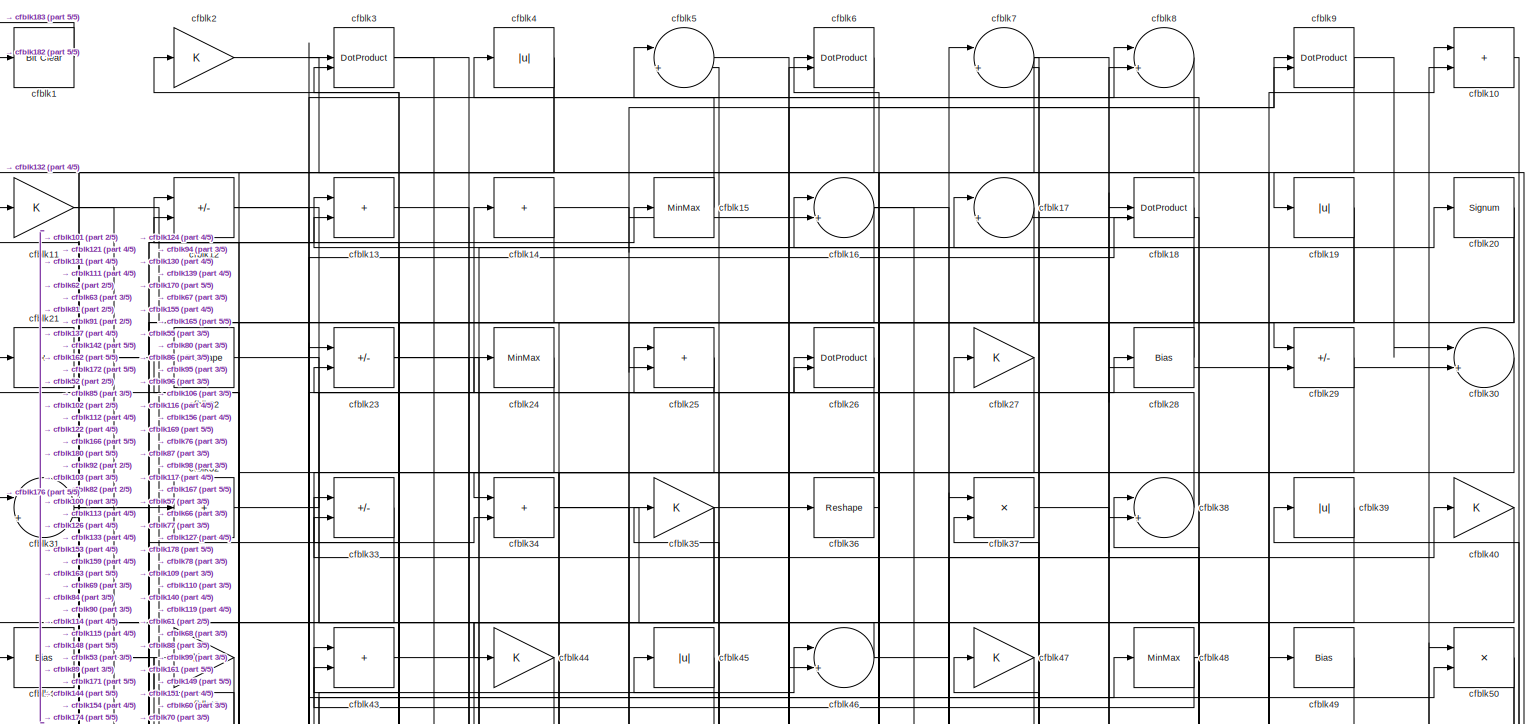
[diagram: root canvas - part 1/5, full width, top band]
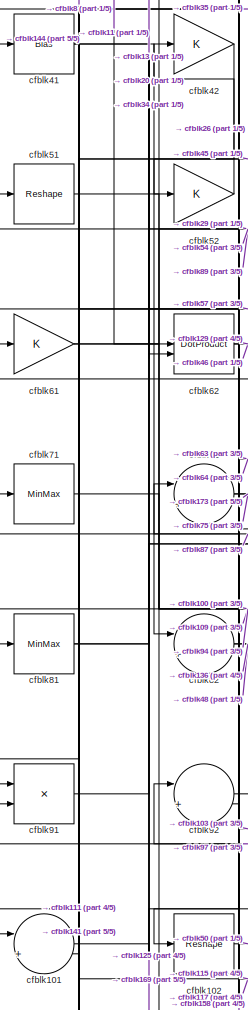
[diagram: root canvas - part 2/5, middle left region]
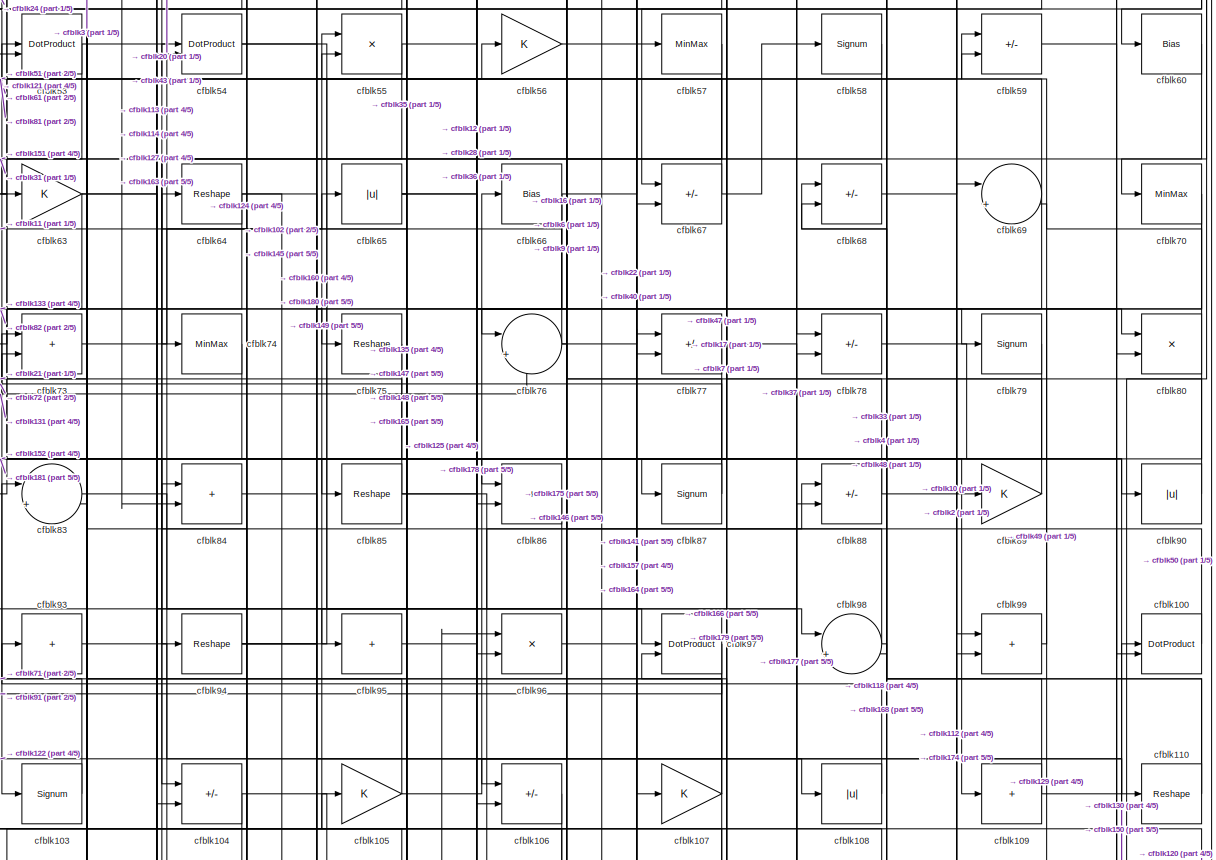
[diagram: root canvas - part 3/5, full width, middle band]
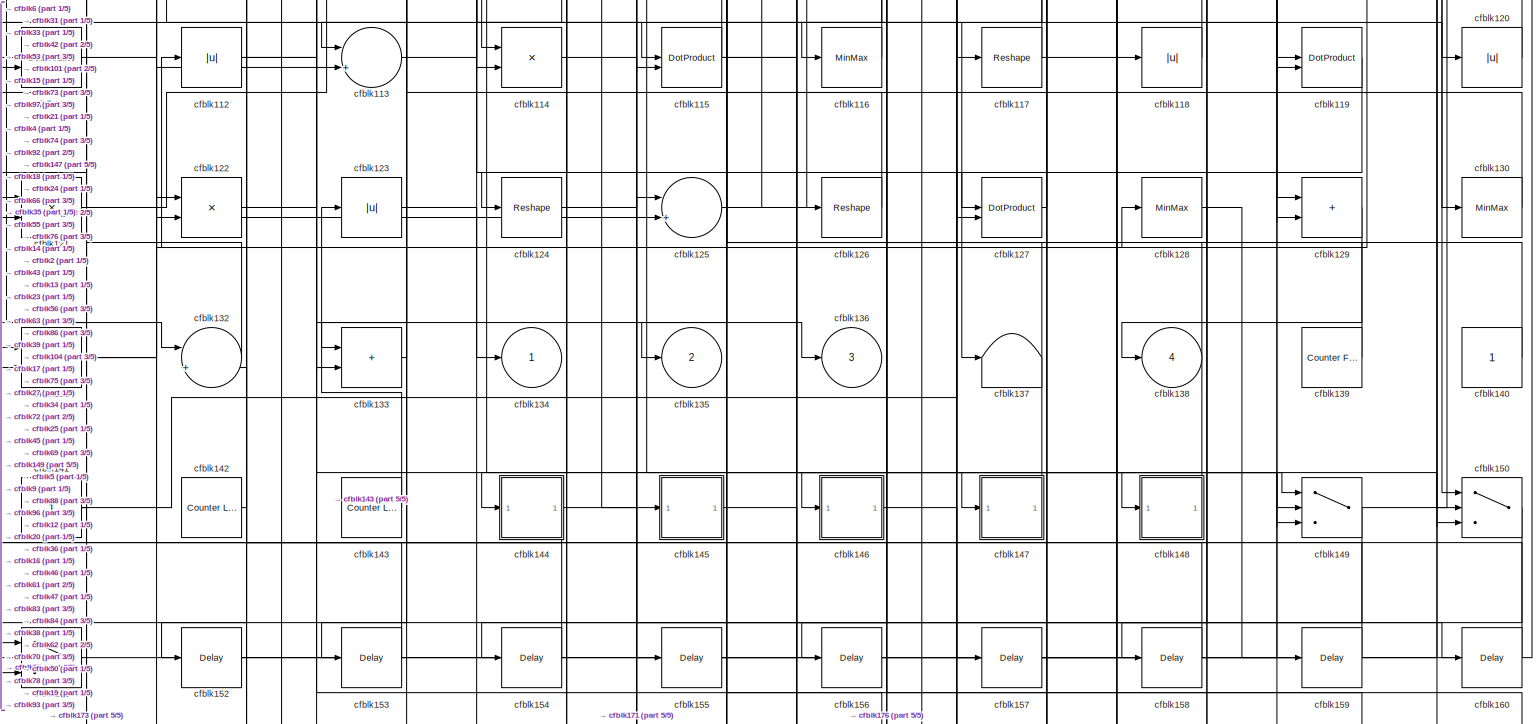
[diagram: root canvas - part 4/5, full width, bottom band]
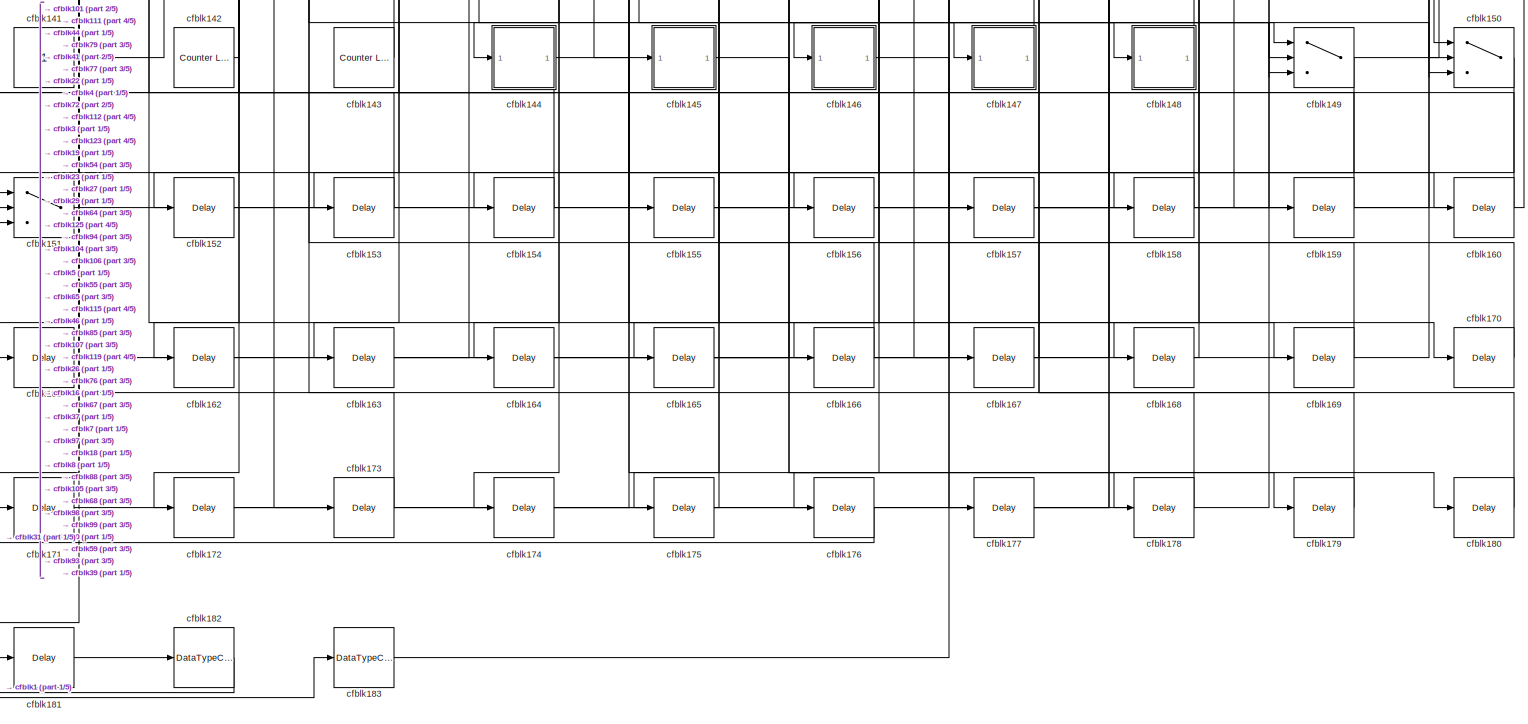
[diagram: root canvas - part 5/5, full width, bottom band]
MODEL slx_efa3fe0fda63
KIND model
CONFIG AbsTol = auto
CONFIG EnableMultiTasking = off
CONFIG FixedStep = auto
CONFIG MaxStep = auto
CONFIG MinStep = auto
CONFIG RelTol = 1e-3
CONFIG SampleTimeConstraint = Unconstrained
CONFIG SolverName = VariableStepAuto
CONFIG StartTime = 0.0
CONFIG StopTime = 10.0
BLOCK [Reference] cfblk1  REF=simulink/Logic and Bit
Operations/Bit Clear
  LibrarySourceBlock = hdlsllib/Logic and Bit\nOperations/Bit Clear
  SourceBlock = simulink/Logic and Bit\nOperations/Bit Clear
  SourceType = Bit Clear
BLOCK [Sum] cfblk10
  IconShape = rectangular
BLOCK [DotProduct] cfblk100
  OutDataTypeStr = Inherit: Inherit via internal rule
BLOCK [Sum] cfblk101
  Inputs = |++
BLOCK [Reshape] cfblk102
BLOCK [Signum] cfblk103
BLOCK [Sum] cfblk104
  IconShape = rectangular
  Inputs = +-
BLOCK [Gain] cfblk105
BLOCK [Sum] cfblk106
  IconShape = rectangular
  Inputs = +-
BLOCK [Gain] cfblk107
BLOCK [Abs] cfblk108
  SaturateOnIntegerOverflow = off
BLOCK [Sum] cfblk109
  IconShape = rectangular
  Inputs = +
BLOCK [Gain] cfblk11
BLOCK [Reshape] cfblk110
BLOCK [DotProduct] cfblk111
  OutDataTypeStr = Inherit: Inherit via internal rule
BLOCK [Abs] cfblk112
  SaturateOnIntegerOverflow = off
BLOCK [Sum] cfblk113
  Inputs = |++
BLOCK [Product] cfblk114
  Inputs = */
  RndMeth = Zero
  SaturateOnIntegerOverflow = on
BLOCK [DotProduct] cfblk115
  OutDataTypeStr = Inherit: Inherit via internal rule
BLOCK [MinMax] cfblk116
BLOCK [Reshape] cfblk117
BLOCK [Abs] cfblk118
  SaturateOnIntegerOverflow = off
BLOCK [DotProduct] cfblk119
  OutDataTypeStr = Inherit: Inherit via internal rule
BLOCK [Sum] cfblk12
  IconShape = rectangular
  Inputs = +-
BLOCK [Abs] cfblk120
  SaturateOnIntegerOverflow = off
BLOCK [Product] cfblk121
  Inputs = */
  RndMeth = Zero
  SaturateOnIntegerOverflow = on
BLOCK [Product] cfblk122
  Inputs = */
  RndMeth = Zero
  SaturateOnIntegerOverflow = on
BLOCK [Abs] cfblk123
  SaturateOnIntegerOverflow = off
BLOCK [Reshape] cfblk124
BLOCK [Sum] cfblk125
  Inputs = |++
BLOCK [Reshape] cfblk126
BLOCK [DotProduct] cfblk127
  OutDataTypeStr = Inherit: Inherit via internal rule
BLOCK [MinMax] cfblk128
BLOCK [Sum] cfblk129
  IconShape = rectangular
BLOCK [Sum] cfblk13
  IconShape = rectangular
BLOCK [MinMax] cfblk130
BLOCK [Sum] cfblk131
  IconShape = rectangular
  Inputs = +-
BLOCK [Sum] cfblk132
  Inputs = |++
BLOCK [Sum] cfblk133
  IconShape = rectangular
BLOCK [Outport] cfblk134
  VectorParamsAs1DForOutWhenUnconnected = off
BLOCK [Outport] cfblk135
  Port = 2
  VectorParamsAs1DForOutWhenUnconnected = off
BLOCK [Outport] cfblk136
  Port = 3
  VectorParamsAs1DForOutWhenUnconnected = off
BLOCK [Terminator] cfblk137
BLOCK [Outport] cfblk138
  Port = 4
  VectorParamsAs1DForOutWhenUnconnected = off
BLOCK [Reference] cfblk139  REF=hdlsllib/Sources/Counter
Free-Running
  SourceBlock = hdlsllib/Sources/Counter\nFree-Running
  SourceType = Counter Free-Running
BLOCK [Sum] cfblk14
  IconShape = rectangular
  Inputs = +
BLOCK [Constant] cfblk140
  SampleTime = -1
BLOCK [Constant] cfblk141
  SampleTime = -1
BLOCK [Reference] cfblk142  REF=hdlsllib/Sources/Counter
Limited
  SourceBlock = hdlsllib/Sources/Counter\nLimited
  SourceType = Counter Limited
BLOCK [Reference] cfblk143  REF=hdlsllib/Sources/Counter
Limited
  SourceBlock = hdlsllib/Sources/Counter\nLimited
  SourceType = Counter Limited
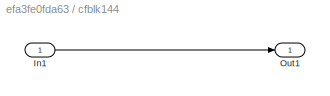
BLOCK [SubSystem] cfblk144
  LibrarySourceBlock = hdlsllib/Ports &\nSubsystems/Subsystem
BLOCK [Inport] cfblk144/In1
BLOCK [Outport] cfblk144/Out1
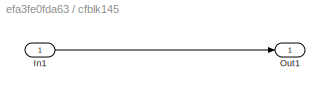
BLOCK [SubSystem] cfblk145
  LibrarySourceBlock = hdlsllib/Ports &\nSubsystems/Subsystem
BLOCK [Inport] cfblk145/In1
BLOCK [Outport] cfblk145/Out1
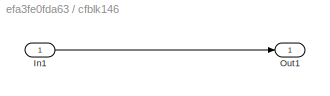
BLOCK [SubSystem] cfblk146
  LibrarySourceBlock = hdlsllib/Ports &\nSubsystems/Subsystem
BLOCK [Inport] cfblk146/In1
BLOCK [Outport] cfblk146/Out1
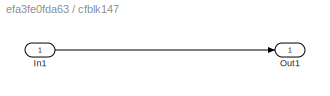
BLOCK [SubSystem] cfblk147
  LibrarySourceBlock = hdlsllib/Ports &\nSubsystems/Subsystem
BLOCK [Inport] cfblk147/In1
BLOCK [Outport] cfblk147/Out1
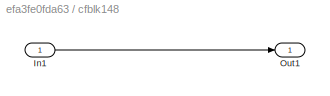
BLOCK [SubSystem] cfblk148
  LibrarySourceBlock = hdlsllib/Ports &\nSubsystems/Subsystem
BLOCK [Inport] cfblk148/In1
BLOCK [Outport] cfblk148/Out1
BLOCK [Switch] cfblk149
  InputSameDT = off
  SaturateOnIntegerOverflow = off
BLOCK [MinMax] cfblk15
BLOCK [Switch] cfblk150
  InputSameDT = off
  SaturateOnIntegerOverflow = off
BLOCK [Switch] cfblk151
  InputSameDT = off
  SaturateOnIntegerOverflow = off
BLOCK [Delay] cfblk152
  InputPortMap = u0
  SampleTime = 1
BLOCK [Delay] cfblk153
  InputPortMap = u0
  SampleTime = 1
BLOCK [Delay] cfblk154
  InputPortMap = u0
  SampleTime = 1
BLOCK [Delay] cfblk155
  InputPortMap = u0
  SampleTime = 1
BLOCK [Delay] cfblk156
  InputPortMap = u0
  SampleTime = 1
BLOCK [Delay] cfblk157
  InputPortMap = u0
  SampleTime = 1
BLOCK [Delay] cfblk158
  InputPortMap = u0
  SampleTime = 1
BLOCK [Delay] cfblk159
  InputPortMap = u0
  SampleTime = 1
BLOCK [Sum] cfblk16
  Inputs = |++
BLOCK [Delay] cfblk160
  InputPortMap = u0
  SampleTime = 1
BLOCK [Delay] cfblk161
  InputPortMap = u0
  SampleTime = 1
BLOCK [Delay] cfblk162
  InputPortMap = u0
  SampleTime = 1
BLOCK [Delay] cfblk163
  InputPortMap = u0
  SampleTime = 1
BLOCK [Delay] cfblk164
  InputPortMap = u0
  SampleTime = 1
BLOCK [Delay] cfblk165
  InputPortMap = u0
  SampleTime = 1
BLOCK [Delay] cfblk166
  InputPortMap = u0
  SampleTime = 1
BLOCK [Delay] cfblk167
  InputPortMap = u0
  SampleTime = 1
BLOCK [Delay] cfblk168
  InputPortMap = u0
  SampleTime = 1
BLOCK [Delay] cfblk169
  InputPortMap = u0
  SampleTime = 1
BLOCK [Sum] cfblk17
  Inputs = |++
BLOCK [Delay] cfblk170
  InputPortMap = u0
  SampleTime = 1
BLOCK [Delay] cfblk171
  InputPortMap = u0
  SampleTime = 1
BLOCK [Delay] cfblk172
  InputPortMap = u0
  SampleTime = 1
BLOCK [Delay] cfblk173
  InputPortMap = u0
  SampleTime = 1
BLOCK [Delay] cfblk174
  InputPortMap = u0
  SampleTime = 1
BLOCK [Delay] cfblk175
  InputPortMap = u0
  SampleTime = 1
BLOCK [Delay] cfblk176
  InputPortMap = u0
  SampleTime = 1
BLOCK [Delay] cfblk177
  InputPortMap = u0
  SampleTime = 1
BLOCK [Delay] cfblk178
  InputPortMap = u0
  SampleTime = 1
BLOCK [Delay] cfblk179
  InputPortMap = u0
  SampleTime = 1
BLOCK [DotProduct] cfblk18
  OutDataTypeStr = Inherit: Inherit via internal rule
BLOCK [Delay] cfblk180
  InputPortMap = u0
  SampleTime = 1
BLOCK [Delay] cfblk181
  InputPortMap = u0
  SampleTime = 1
BLOCK [DataTypeConversion] cfblk182
  OutDataTypeStr = boolean
  RndMeth = Floor
  SaturateOnIntegerOverflow = off
BLOCK [DataTypeConversion] cfblk183
  OutDataTypeStr = uint8
  RndMeth = Floor
  SaturateOnIntegerOverflow = off
BLOCK [Abs] cfblk19
  SaturateOnIntegerOverflow = off
BLOCK [Gain] cfblk2
BLOCK [Signum] cfblk20
BLOCK [Sum] cfblk21
  IconShape = rectangular
  Inputs = +
BLOCK [Reshape] cfblk22
BLOCK [Sum] cfblk23
  IconShape = rectangular
  Inputs = +-
BLOCK [MinMax] cfblk24
BLOCK [Sum] cfblk25
  IconShape = rectangular
BLOCK [DotProduct] cfblk26
  OutDataTypeStr = Inherit: Inherit via internal rule
BLOCK [Gain] cfblk27
BLOCK [Bias] cfblk28
  Bias = 0.0
  SaturateOnIntegerOverflow = off
BLOCK [Sum] cfblk29
  IconShape = rectangular
  Inputs = +-
BLOCK [DotProduct] cfblk3
  OutDataTypeStr = Inherit: Inherit via internal rule
BLOCK [Sum] cfblk30
  Inputs = |++
BLOCK [Sum] cfblk31
  Inputs = |++
BLOCK [Sum] cfblk32
  IconShape = rectangular
  Inputs = +
BLOCK [Sum] cfblk33
  IconShape = rectangular
  Inputs = +-
BLOCK [Sum] cfblk34
  IconShape = rectangular
BLOCK [Gain] cfblk35
BLOCK [Reshape] cfblk36
BLOCK [Product] cfblk37
  Inputs = */
  RndMeth = Zero
  SaturateOnIntegerOverflow = on
BLOCK [Sum] cfblk38
  Inputs = |++
BLOCK [Abs] cfblk39
  SaturateOnIntegerOverflow = off
BLOCK [Abs] cfblk4
  SaturateOnIntegerOverflow = off
BLOCK [Gain] cfblk40
BLOCK [Bias] cfblk41
  Bias = 0.0
  SaturateOnIntegerOverflow = off
BLOCK [Gain] cfblk42
BLOCK [Sum] cfblk43
  IconShape = rectangular
BLOCK [Gain] cfblk44
BLOCK [Abs] cfblk45
  SaturateOnIntegerOverflow = off
BLOCK [Sum] cfblk46
  Inputs = |++
BLOCK [Gain] cfblk47
BLOCK [MinMax] cfblk48
BLOCK [Bias] cfblk49
  Bias = 0.0
  SaturateOnIntegerOverflow = off
BLOCK [Sum] cfblk5
  Inputs = |++
BLOCK [Product] cfblk50
  Inputs = */
  RndMeth = Zero
  SaturateOnIntegerOverflow = on
BLOCK [Reshape] cfblk51
BLOCK [Gain] cfblk52
BLOCK [DotProduct] cfblk53
  OutDataTypeStr = Inherit: Inherit via internal rule
BLOCK [DotProduct] cfblk54
  OutDataTypeStr = Inherit: Inherit via internal rule
BLOCK [Product] cfblk55
  Inputs = */
  RndMeth = Zero
  SaturateOnIntegerOverflow = on
BLOCK [Gain] cfblk56
BLOCK [MinMax] cfblk57
BLOCK [Signum] cfblk58
BLOCK [Sum] cfblk59
  IconShape = rectangular
  Inputs = +-
BLOCK [DotProduct] cfblk6
  OutDataTypeStr = Inherit: Inherit via internal rule
BLOCK [Bias] cfblk60
  Bias = 0.0
  SaturateOnIntegerOverflow = off
BLOCK [Gain] cfblk61
BLOCK [DotProduct] cfblk62
  OutDataTypeStr = Inherit: Inherit via internal rule
BLOCK [Gain] cfblk63
BLOCK [Reshape] cfblk64
BLOCK [Abs] cfblk65
  SaturateOnIntegerOverflow = off
BLOCK [Bias] cfblk66
  Bias = 0.0
  SaturateOnIntegerOverflow = off
BLOCK [Sum] cfblk67
  IconShape = rectangular
  Inputs = +-
BLOCK [Sum] cfblk68
  IconShape = rectangular
  Inputs = +-
BLOCK [Sum] cfblk69
  Inputs = |++
BLOCK [Sum] cfblk7
  Inputs = |++
BLOCK [MinMax] cfblk70
BLOCK [MinMax] cfblk71
BLOCK [Sum] cfblk72
  Inputs = |++
BLOCK [Sum] cfblk73
  IconShape = rectangular
BLOCK [MinMax] cfblk74
BLOCK [Reshape] cfblk75
BLOCK [Sum] cfblk76
  Inputs = |++
BLOCK [Sum] cfblk77
  IconShape = rectangular
  Inputs = +-
BLOCK [Sum] cfblk78
  IconShape = rectangular
  Inputs = +-
BLOCK [Signum] cfblk79
BLOCK [Sum] cfblk8
  Inputs = |++
BLOCK [Product] cfblk80
  Inputs = */
  RndMeth = Zero
  SaturateOnIntegerOverflow = on
BLOCK [MinMax] cfblk81
BLOCK [Sum] cfblk82
  Inputs = |++
BLOCK [Sum] cfblk83
  Inputs = |++
BLOCK [Sum] cfblk84
  IconShape = rectangular
BLOCK [Reshape] cfblk85
BLOCK [Sum] cfblk86
  IconShape = rectangular
BLOCK [Signum] cfblk87
BLOCK [Sum] cfblk88
  IconShape = rectangular
  Inputs = +-
BLOCK [Gain] cfblk89
BLOCK [DotProduct] cfblk9
  OutDataTypeStr = Inherit: Inherit via internal rule
BLOCK [Abs] cfblk90
  SaturateOnIntegerOverflow = off
BLOCK [Product] cfblk91
  Inputs = */
  RndMeth = Zero
  SaturateOnIntegerOverflow = on
BLOCK [Sum] cfblk92
  Inputs = |++
BLOCK [Sum] cfblk93
  IconShape = rectangular
  Inputs = +
BLOCK [Reshape] cfblk94
BLOCK [Sum] cfblk95
  IconShape = rectangular
  Inputs = +
BLOCK [Product] cfblk96
  Inputs = */
  RndMeth = Zero
  SaturateOnIntegerOverflow = on
BLOCK [DotProduct] cfblk97
  OutDataTypeStr = Inherit: Inherit via internal rule
BLOCK [Sum] cfblk98
  Inputs = |++
BLOCK [Sum] cfblk99
  IconShape = rectangular
LINE cfblk100:1 -> cfblk12:1
LINE cfblk101:1 -> cfblk125:2
LINE cfblk102:1 -> cfblk50:2
LINE cfblk103:1 -> cfblk71:1
NET cfblk104:1 -> cfblk149:1, cfblk151:2
NET cfblk105:1 -> cfblk53:1, cfblk66:1
LINE cfblk106:1 -> cfblk175:1
NET cfblk107:1 -> cfblk166:1, cfblk73:1, cfblk83:2
LINE cfblk108:1 -> cfblk83:1
NET cfblk109:1 -> cfblk100:1, cfblk33:1
LINE cfblk10:1 -> cfblk70:1
NET cfblk110:1 -> cfblk17:2, cfblk4:1
LINE cfblk111:1 -> cfblk15:1
NET cfblk112:1 -> cfblk147:1, cfblk24:1
LINE cfblk113:1 -> cfblk56:1
LINE cfblk114:1 -> cfblk155:1
NET cfblk115:1 -> cfblk149:2, cfblk72:2, cfblk9:1
LINE cfblk116:1 -> cfblk12:2
NET cfblk117:1 -> cfblk120:1, cfblk61:1
LINE cfblk118:1 -> cfblk84:1
LINE cfblk119:1 -> cfblk176:1
NET cfblk11:1 -> cfblk38:2, cfblk62:1
LINE cfblk120:1 -> cfblk93:1
NET cfblk121:1 -> cfblk55:1, cfblk76:2
LINE cfblk122:1 -> cfblk18:2
LINE cfblk123:1 -> cfblk134:1
LINE cfblk124:1 -> cfblk27:1
NET cfblk125:1 -> cfblk88:1, cfblk96:1
LINE cfblk126:1 -> cfblk2:1
LINE cfblk127:1 -> cfblk47:1
NET cfblk128:1 -> cfblk158:1, cfblk159:1
LINE cfblk129:1 -> cfblk138:1
NET cfblk12:1 -> cfblk86:2, cfblk96:2
LINE cfblk130:1 -> cfblk45:1
NET cfblk131:1 -> cfblk113:2, cfblk128:1, cfblk73:2
LINE cfblk132:1 -> cfblk31:2
LINE cfblk133:1 -> cfblk43:1
LINE cfblk139:1 -> cfblk25:1
LINE cfblk13:1 -> cfblk115:1
LINE cfblk140:1 -> cfblk38:1
NET cfblk141:1 -> cfblk101:2, cfblk77:1
LINE cfblk142:1 -> cfblk22:1
LINE cfblk143:1 -> cfblk123:1
LINE cfblk144/In1:1 -> cfblk144/Out1:1
NET cfblk144:1 -> cfblk170:1, cfblk41:1
LINE cfblk145/In1:1 -> cfblk145/Out1:1
LINE cfblk145:1 -> cfblk179:1
LINE cfblk146/In1:1 -> cfblk146/Out1:1
LINE cfblk146:1 -> cfblk177:1
LINE cfblk147/In1:1 -> cfblk147/Out1:1
LINE cfblk147:1 -> cfblk64:1
LINE cfblk148/In1:1 -> cfblk148/Out1:1
LINE cfblk148:1 -> cfblk105:1
NET cfblk149:1 -> cfblk161:1, cfblk39:1
NET cfblk14:1 -> cfblk133:1, cfblk16:2
LINE cfblk150:1 -> cfblk164:1
LINE cfblk151:1 -> cfblk19:1
LINE cfblk152:1 -> cfblk69:1
LINE cfblk153:1 -> cfblk132:2
LINE cfblk154:1 -> cfblk122:1
LINE cfblk155:1 -> cfblk6:2
LINE cfblk156:1 -> cfblk50:1
LINE cfblk157:1 -> cfblk78:2
LINE cfblk158:1 -> cfblk92:1
LINE cfblk159:1 -> cfblk33:2
LINE cfblk15:1 -> cfblk5:1
LINE cfblk160:1 -> cfblk131:2
LINE cfblk161:1 -> cfblk10:2
LINE cfblk162:1 -> cfblk8:2
LINE cfblk163:1 -> cfblk54:2
LINE cfblk164:1 -> cfblk67:2
LINE cfblk165:1 -> cfblk46:2
LINE cfblk166:1 -> cfblk23:1
LINE cfblk167:1 -> cfblk37:2
LINE cfblk168:1 -> cfblk68:2
LINE cfblk169:1 -> cfblk26:2
NET cfblk16:1 -> cfblk113:1, cfblk149:3, cfblk167:1
LINE cfblk170:1 -> cfblk5:2
LINE cfblk171:1 -> cfblk125:1
LINE cfblk172:1 -> cfblk18:1
LINE cfblk173:1 -> cfblk111:2
LINE cfblk174:1 -> cfblk99:2
LINE cfblk175:1 -> cfblk55:2
LINE cfblk176:1 -> cfblk31:1
LINE cfblk177:1 -> cfblk88:2
LINE cfblk178:1 -> cfblk7:2
LINE cfblk179:1 -> cfblk97:2
LINE cfblk17:1 -> cfblk154:1
LINE cfblk180:1 -> cfblk3:1
LINE cfblk181:1 -> cfblk182:1
LINE cfblk182:1 -> cfblk1:1
LINE cfblk183:1 -> cfblk7:1
LINE cfblk18:1 -> cfblk25:2
NET cfblk19:1 -> cfblk162:1, cfblk163:1
LINE cfblk1:1 -> cfblk183:1
NET cfblk20:1 -> cfblk156:1, cfblk62:2
NET cfblk21:1 -> cfblk137:1, cfblk29:1
LINE cfblk22:1 -> cfblk57:1
NET cfblk23:1 -> cfblk115:2, cfblk148:1
LINE cfblk24:1 -> cfblk103:1
NET cfblk25:1 -> cfblk153:1, cfblk23:2
LINE cfblk26:1 -> cfblk52:1
LINE cfblk27:1 -> cfblk174:1
LINE cfblk28:1 -> cfblk13:1
LINE cfblk29:1 -> cfblk144:1
LINE cfblk2:1 -> cfblk99:1
LINE cfblk30:1 -> cfblk34:1
NET cfblk31:1 -> cfblk32:1, cfblk63:1
LINE cfblk32:1 -> cfblk26:1
LINE cfblk33:1 -> cfblk131:1
NET cfblk34:1 -> cfblk119:1, cfblk119:2
NET cfblk35:1 -> cfblk121:2, cfblk80:2, cfblk81:1
LINE cfblk36:1 -> cfblk116:1
LINE cfblk37:1 -> cfblk78:1
LINE cfblk38:1 -> cfblk14:1
LINE cfblk39:1 -> cfblk114:1
NET cfblk3:1 -> cfblk84:2, cfblk90:1
LINE cfblk40:1 -> cfblk77:2
NET cfblk41:1 -> cfblk169:1, cfblk82:1
LINE cfblk42:1 -> cfblk111:1
LINE cfblk43:1 -> cfblk89:1
LINE cfblk44:1 -> cfblk171:1
LINE cfblk45:1 -> cfblk92:2
NET cfblk46:1 -> cfblk117:1, cfblk44:1
LINE cfblk47:1 -> cfblk95:1
NET cfblk48:1 -> cfblk43:2, cfblk98:2
LINE cfblk49:1 -> cfblk67:1
NET cfblk4:1 -> cfblk121:1, cfblk172:1
NET cfblk50:1 -> cfblk53:2, cfblk60:1
LINE cfblk51:1 -> cfblk100:2
LINE cfblk52:1 -> cfblk42:1
NET cfblk53:1 -> cfblk151:1, cfblk20:1
NET cfblk54:1 -> cfblk79:1, cfblk97:1
NET cfblk55:1 -> cfblk104:1, cfblk28:1
LINE cfblk56:1 -> cfblk107:1
NET cfblk57:1 -> cfblk151:3, cfblk91:1
LINE cfblk58:1 -> cfblk74:1
LINE cfblk59:1 -> cfblk150:3
LINE cfblk5:1 -> cfblk126:1
LINE cfblk60:1 -> cfblk86:1
NET cfblk61:1 -> cfblk109:1, cfblk29:2
NET cfblk62:1 -> cfblk129:1, cfblk46:1
NET cfblk63:1 -> cfblk127:1, cfblk127:2, cfblk82:2
NET cfblk64:1 -> cfblk102:1, cfblk110:1, cfblk145:1
NET cfblk65:1 -> cfblk108:1, cfblk165:1, cfblk80:1
NET cfblk66:1 -> cfblk106:2, cfblk133:2, cfblk37:1
NET cfblk67:1 -> cfblk35:1, cfblk58:1
LINE cfblk68:1 -> cfblk49:1
NET cfblk69:1 -> cfblk135:1, cfblk3:2
LINE cfblk6:1 -> cfblk132:1
NET cfblk70:1 -> cfblk112:1, cfblk129:2
LINE cfblk71:1 -> cfblk94:1
NET cfblk72:1 -> cfblk173:1, cfblk75:1
LINE cfblk73:1 -> cfblk65:1
LINE cfblk74:1 -> cfblk152:1
LINE cfblk75:1 -> cfblk124:1
NET cfblk76:1 -> cfblk11:1, cfblk146:1, cfblk40:1
NET cfblk77:1 -> cfblk150:2, cfblk85:1
LINE cfblk78:1 -> cfblk130:1
LINE cfblk79:1 -> cfblk181:1
NET cfblk7:1 -> cfblk30:2, cfblk76:1, cfblk87:1
NET cfblk80:1 -> cfblk104:2, cfblk59:2
NET cfblk81:1 -> cfblk34:2, cfblk54:1
NET cfblk82:1 -> cfblk136:1, cfblk48:1
LINE cfblk83:1 -> cfblk118:1
LINE cfblk84:1 -> cfblk160:1
NET cfblk85:1 -> cfblk178:1, cfblk21:1, cfblk98:1
LINE cfblk86:1 -> cfblk114:2
NET cfblk87:1 -> cfblk6:1, cfblk72:1
NET cfblk88:1 -> cfblk10:1, cfblk17:1
LINE cfblk89:1 -> cfblk51:1
LINE cfblk8:1 -> cfblk101:1
LINE cfblk90:1 -> cfblk68:1
LINE cfblk91:1 -> cfblk13:2
LINE cfblk92:1 -> cfblk8:1
LINE cfblk93:1 -> cfblk150:1
NET cfblk94:1 -> cfblk180:1, cfblk59:1, cfblk9:2
LINE cfblk95:1 -> cfblk36:1
LINE cfblk96:1 -> cfblk157:1
NET cfblk97:1 -> cfblk122:2, cfblk91:2
NET cfblk98:1 -> cfblk168:1, cfblk16:1
LINE cfblk99:1 -> cfblk69:2
NET cfblk9:1 -> cfblk106:1, cfblk30:1
note: NET lines group one-source signal fan-out (src -> all destinations, sorted); 1:1 wires keep LINE
